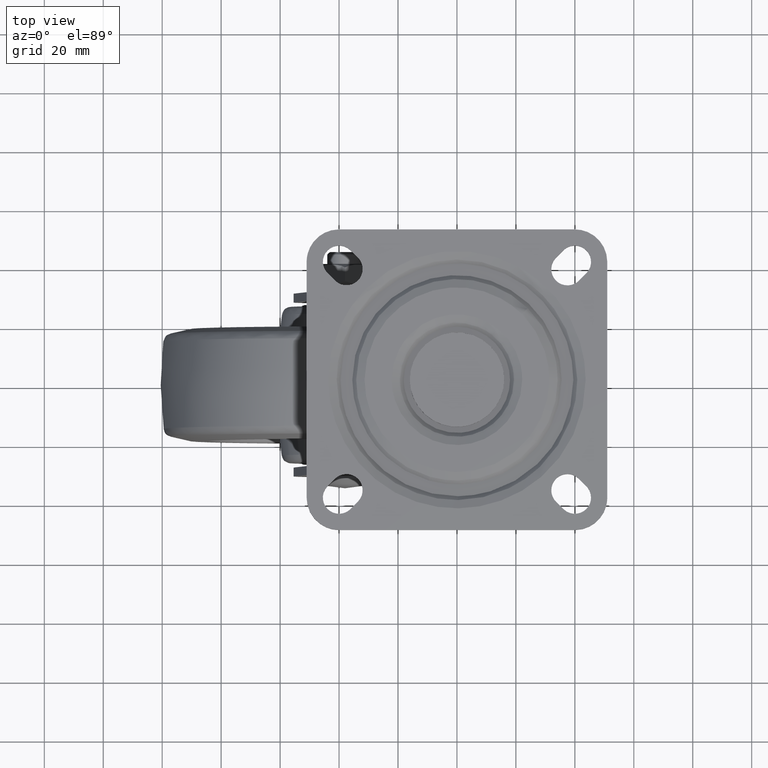
[diagram: clean part render]
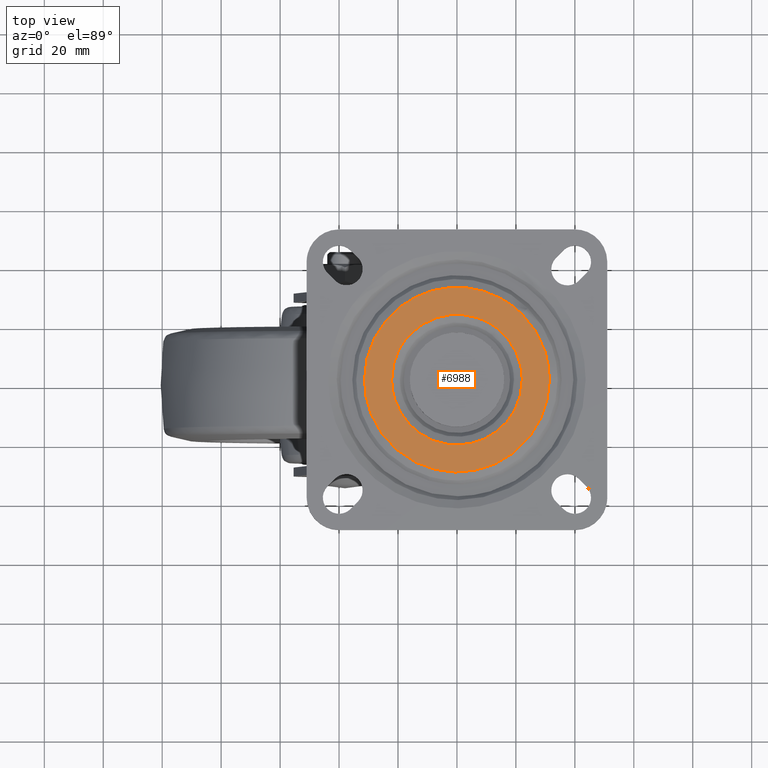
[diagram: same view with one face highlighted and labeled with its STEP entity id]
A machine part, top view. The second image highlights one B-rep face of the part: STEP entity #6988.
In plain terms, the highlighted face is a freeform B-spline surface patch.
Its self-contained STEP definition (entity closure, byte-faithful):
#5933=CARTESIAN_POINT('',(-15.765392290568469,15.568512966609410,-1.105786E-015));
#5934=VERTEX_POINT('',#5933);
#5948=CARTESIAN_POINT('',(-22.156854249492401,0.0,-8.881784E-016));
#5949=VERTEX_POINT('',#5948);
#5950=CARTESIAN_POINT('',(-22.156854249492401,0.0,-8.881784E-016));
#5951=CARTESIAN_POINT('',(-22.156854249492401,9.096224622459719,-8.881784E-016));
#5952=CARTESIAN_POINT('',(-15.765392290568476,15.568512966609408,-1.105786E-015));
#5960=(BOUNDED_CURVE()B_SPLINE_CURVE(2,(#5950,#5951,#5952),.UNSPECIFIED.,.F.,.U.)B_SPLINE_CURVE_WITH_KNOTS((3,3),(0.0,0.124051937432070),.UNSPECIFIED.)CURVE()GEOMETRIC_REPRESENTATION_ITEM()RATIONAL_B_SPLINE_CURVE((1.0,0.854664114981904,0.853561814883003))REPRESENTATION_ITEM(''));
#5961=EDGE_CURVE('',#5949,#5934,#5960,.T.);
#5963=CARTESIAN_POINT('',(22.156854249492401,0.0,0.0));
#5964=VERTEX_POINT('',#5963);
#5965=CARTESIAN_POINT('',(22.156854249492401,0.0,-8.881784E-016));
#5966=CARTESIAN_POINT('',(22.156854249492405,-22.156854249492405,-8.881784E-016));
#5967=CARTESIAN_POINT('',(0.0,-22.156854249492401,-8.881784E-016));
#5968=CARTESIAN_POINT('',(-22.156854249492405,-22.156854249492405,-8.881784E-016));
#5969=CARTESIAN_POINT('',(-22.156854249492401,0.0,-8.881784E-016));
#5977=(BOUNDED_CURVE()B_SPLINE_CURVE(2,(#5965,#5966,#5967,#5968,#5969),.UNSPECIFIED.,.F.,.U.)B_SPLINE_CURVE_WITH_KNOTS((3,2,3),(0.500000000000000,0.750000000000000,1.0),.UNSPECIFIED.)CURVE()GEOMETRIC_REPRESENTATION_ITEM()RATIONAL_B_SPLINE_CURVE((1.0,0.707106781186547,1.0,0.707106781186547,1.0))REPRESENTATION_ITEM(''));
#5978=EDGE_CURVE('',#5964,#5949,#5977,.T.);
#5980=CARTESIAN_POINT('',(13.644046258673381,17.457554005129872,-1.072735E-015));
#5981=VERTEX_POINT('',#5980);
#5982=CARTESIAN_POINT('',(13.644046258673377,17.457554005129865,-1.072735E-015));
#5983=CARTESIAN_POINT('',(22.156854249492401,10.804322633565794,-8.881784E-016));
#5984=CARTESIAN_POINT('',(22.156854249492401,0.0,-8.881784E-016));
#5992=(BOUNDED_CURVE()B_SPLINE_CURVE(2,(#5982,#5983,#5984),.UNSPECIFIED.,.F.,.U.)B_SPLINE_CURVE_WITH_KNOTS((3,3),(0.356567917886251,0.500000000000000),.UNSPECIFIED.)CURVE()GEOMETRIC_REPRESENTATION_ITEM()RATIONAL_B_SPLINE_CURVE((0.856737647416968,0.831958863154355,1.0))REPRESENTATION_ITEM(''));
#5993=EDGE_CURVE('',#5981,#5964,#5992,.T.);
#6030=CARTESIAN_POINT('',(-15.765392290568476,15.568512966609408,-1.105786E-015));
#6031=CARTESIAN_POINT('',(-9.259326680689687,22.156854249492390,-8.881784E-016));
#6032=CARTESIAN_POINT('',(0.0,22.156854249492401,-8.881784E-016));
#6033=CARTESIAN_POINT('',(7.631292695320252,22.156854249492397,-8.881784E-016));
#6034=CARTESIAN_POINT('',(13.644046258673377,17.457554005129865,-1.072735E-015));
#6042=(BOUNDED_CURVE()B_SPLINE_CURVE(2,(#6030,#6031,#6032,#6033,#6034),.UNSPECIFIED.,.F.,.U.)B_SPLINE_CURVE_WITH_KNOTS((3,2,3),(0.124051937432070,0.250000000000000,0.356567917886251),.UNSPECIFIED.)CURVE()GEOMETRIC_REPRESENTATION_ITEM()RATIONAL_B_SPLINE_CURVE((0.853561814883003,0.852442666204643,1.0,0.875147918032193,0.856737647416968))REPRESENTATION_ITEM(''));
#6043=EDGE_CURVE('',#5934,#5981,#6042,.T.);
#6084=CARTESIAN_POINT('',(24.695502963248781,-19.300904623434089,-1.041266E-015));
#6085=VERTEX_POINT('',#6084);
#6086=CARTESIAN_POINT('',(-31.343145750507599,0.0,-8.293151E-016));
#6087=VERTEX_POINT('',#6086);
#6088=CARTESIAN_POINT('',(24.695502963248781,-19.300904623434089,-1.041266E-015));
#6089=CARTESIAN_POINT('',(15.283823923132186,-31.343145750507599,-8.293151E-016));
#6090=CARTESIAN_POINT('',(0.0,-31.343145750507599,-8.293151E-016));
#6091=CARTESIAN_POINT('',(-31.343145750507588,-31.343145750507588,-8.293151E-016));
#6092=CARTESIAN_POINT('',(-31.343145750507599,0.0,-8.293151E-016));
#6100=(BOUNDED_CURVE()B_SPLINE_CURVE(2,(#6088,#6089,#6090,#6091,#6092),.UNSPECIFIED.,.F.,.U.)B_SPLINE_CURVE_WITH_KNOTS((3,2,3),(0.606567917886116,0.750000000000000,1.0),.UNSPECIFIED.)CURVE()GEOMETRIC_REPRESENTATION_ITEM()RATIONAL_B_SPLINE_CURVE((0.856737647417015,0.831958863154196,1.0,0.707106781186548,1.0))REPRESENTATION_ITEM(''));
#6101=EDGE_CURVE('',#6085,#6087,#6100,.T.);
#6103=CARTESIAN_POINT('',(22.023260419402789,22.301766441918499,-1.014250E-015));
#6104=VERTEX_POINT('',#6103);
#6105=CARTESIAN_POINT('',(-31.343145750507599,0.0,-8.293151E-016));
#6106=CARTESIAN_POINT('',(-31.343145750507588,31.343145750507588,-8.293151E-016));
#6107=CARTESIAN_POINT('',(0.0,31.343145750507599,-8.293151E-016));
#6108=CARTESIAN_POINT('',(12.867543872008060,31.343145750507592,-8.293151E-016));
#6109=CARTESIAN_POINT('',(22.023260419402799,22.301766441918502,-1.014250E-015));
#6117=(BOUNDED_CURVE()B_SPLINE_CURVE(2,(#6105,#6106,#6107,#6108,#6109),.UNSPECIFIED.,.F.,.U.)B_SPLINE_CURVE_WITH_KNOTS((3,2,3),(0.0,0.250000000000000,0.374051937432040),.UNSPECIFIED.)CURVE()GEOMETRIC_REPRESENTATION_ITEM()RATIONAL_B_SPLINE_CURVE((1.0,0.707106781186548,1.0,0.854664114981939,0.853561814883004))REPRESENTATION_ITEM(''));
#6118=EDGE_CURVE('',#6087,#6104,#6117,.T.);
#6170=CARTESIAN_POINT('',(31.343145750507599,0.0,0.0));
#6171=VERTEX_POINT('',#6170);
#6172=CARTESIAN_POINT('',(31.343145750507599,0.0,-8.293151E-016));
#6173=CARTESIAN_POINT('',(31.343145750507595,-10.795247218785045,-8.293151E-016));
#6174=CARTESIAN_POINT('',(24.695502963248781,-19.300904623434096,-1.041266E-015));
#6182=(BOUNDED_CURVE()B_SPLINE_CURVE(2,(#6172,#6173,#6174),.UNSPECIFIED.,.F.,.U.)B_SPLINE_CURVE_WITH_KNOTS((3,3),(0.500000000000000,0.606567917886116),.UNSPECIFIED.)CURVE()GEOMETRIC_REPRESENTATION_ITEM()RATIONAL_B_SPLINE_CURVE((1.0,0.875147918032352,0.856737647417015))REPRESENTATION_ITEM(''));
#6183=EDGE_CURVE('',#6171,#6085,#6182,.T.);
#6189=CARTESIAN_POINT('',(22.023260419402799,22.301766441918502,-1.014250E-015));
#6190=CARTESIAN_POINT('',(31.343145750507595,13.098268483268532,-8.293151E-016));
#6191=CARTESIAN_POINT('',(31.343145750507599,0.0,-8.293151E-016));
#6199=(BOUNDED_CURVE()B_SPLINE_CURVE(2,(#6189,#6190,#6191),.UNSPECIFIED.,.F.,.U.)B_SPLINE_CURVE_WITH_KNOTS((3,3),(0.374051937432040,0.500000000000000),.UNSPECIFIED.)CURVE()GEOMETRIC_REPRESENTATION_ITEM()RATIONAL_B_SPLINE_CURVE((0.853561814883004,0.852442666204609,1.0))REPRESENTATION_ITEM(''));
#6200=EDGE_CURVE('',#6104,#6171,#6199,.T.);
#6971=CARTESIAN_POINT('',(-34.474325889485108,34.474035790348907,0.0));
#6972=CARTESIAN_POINT('',(34.474327570862471,34.474035790348907,0.0));
#6973=CARTESIAN_POINT('',(-34.474325889485108,-34.474285456121898,0.0));
#6974=CARTESIAN_POINT('',(34.474327570862471,-34.474285456121898,0.0));
#6975=B_SPLINE_SURFACE_WITH_KNOTS('',1,1,((#6971,#6973),(#6972,#6974)),.UNSPECIFIED.,.F.,.F.,.U.,(2,2),(2,2),(0.0,68.948653460347572),(0.0,68.948321246470812),.UNSPECIFIED.);
#6976=ORIENTED_EDGE('',*,*,#6183,.F.);
#6977=ORIENTED_EDGE('',*,*,#6200,.F.);
#6978=ORIENTED_EDGE('',*,*,#6118,.F.);
#6979=ORIENTED_EDGE('',*,*,#6101,.F.);
#6980=EDGE_LOOP('',(#6976,#6977,#6978,#6979));
#6981=FACE_OUTER_BOUND('',#6980,.T.);
#6982=ORIENTED_EDGE('',*,*,#5978,.T.);
#6983=ORIENTED_EDGE('',*,*,#5961,.T.);
#6984=ORIENTED_EDGE('',*,*,#6043,.T.);
#6985=ORIENTED_EDGE('',*,*,#5993,.T.);
#6986=EDGE_LOOP('',(#6982,#6983,#6984,#6985));
#6987=FACE_BOUND('',#6986,.T.);
#6988=ADVANCED_FACE('',(#6981,#6987),#6975,.F.);